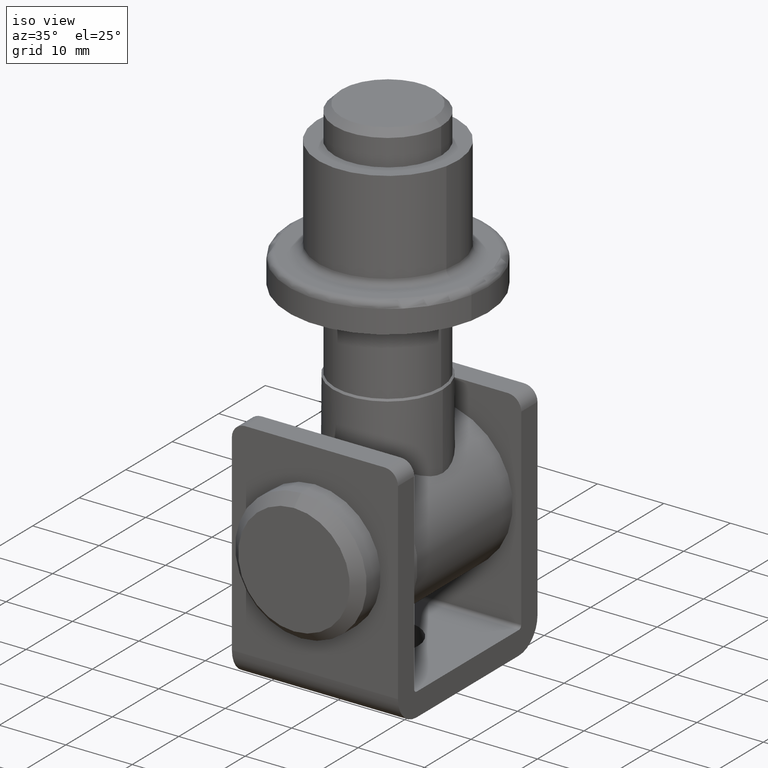
[diagram: clean part render]
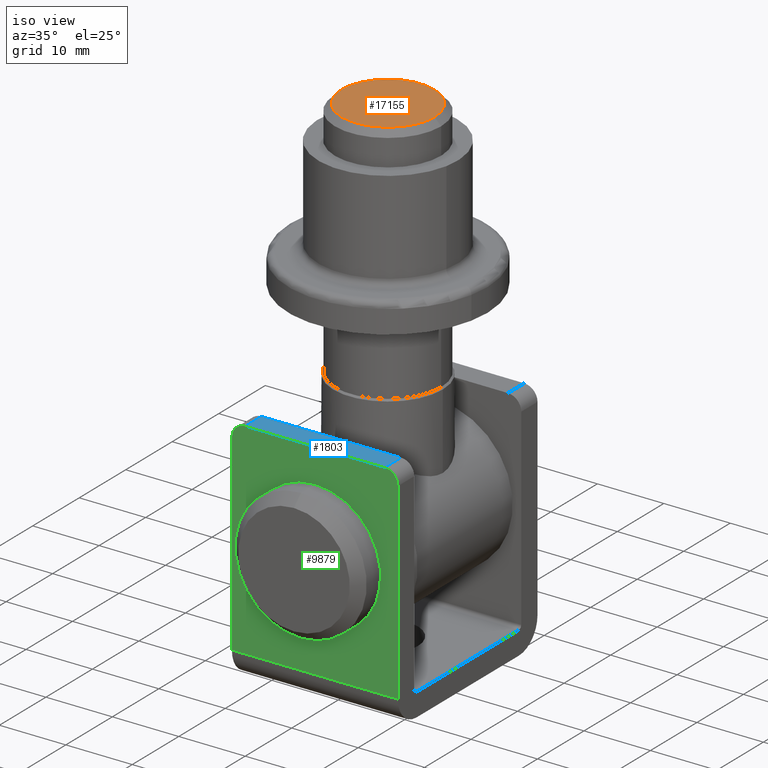
[diagram: same view with three faces highlighted in distinct colors, each labeled with its STEP entity id]
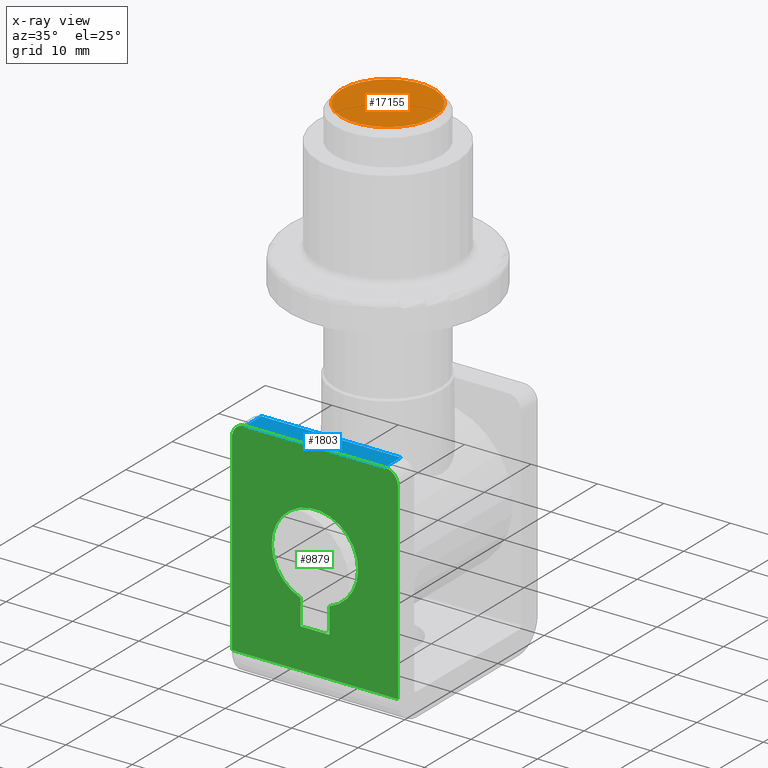
[diagram: x-ray of the same camera — body ghosted, the three highlighted faces saturated]
A machine part, iso view with three faces highlighted in distinct colors.
The next image is the same camera in x-ray (body ghosted, the three faces saturated) — at least one of them is partly hidden behind the body in this view.
Their STEP definitions:

[orange] entity #17155 — the highlighted planar face has unit normal (0, -0, -1).
#566 = CIRCLE ( 'NONE', #14099, 6.999999999999978684 ) ;
#2881 = ORIENTED_EDGE ( 'NONE', *, *, #12612, .T. ) ;
#3214 = CARTESIAN_POINT ( 'NONE',  ( 0.000000000000000000, 0.000000000000000000, -55.75000000000000000 ) ) ;
#3349 = FACE_OUTER_BOUND ( 'NONE', #10663, .T. ) ;
#3473 = DIRECTION ( 'NONE',  ( 1.000000000000000000, 0.000000000000000000, 0.000000000000000000 ) ) ;
#3843 = VERTEX_POINT ( 'NONE', #12645 ) ;
#4955 = CARTESIAN_POINT ( 'NONE',  ( 0.000000000000000000, 0.000000000000000000, -55.75000000000000000 ) ) ;
#5358 = ORIENTED_EDGE ( 'NONE', *, *, #16781, .T. ) ;
#7592 = PLANE ( 'NONE',  #9421 ) ;
#8819 = DIRECTION ( 'NONE',  ( 0.000000000000000000, 0.000000000000000000, 1.000000000000000000 ) ) ;
#9048 = DIRECTION ( 'NONE',  ( 1.000000000000000000, 0.000000000000000000, -0.000000000000000000 ) ) ;
#9421 = AXIS2_PLACEMENT_3D ( 'NONE', #10242, #8819, #9048 ) ;
#10242 = CARTESIAN_POINT ( 'NONE',  ( 0.000000000000000000, 0.000000000000000000, -55.75000000000000000 ) ) ;
#10663 = EDGE_LOOP ( 'NONE', ( #5358, #2881 ) ) ;
#12612 = EDGE_CURVE ( 'NONE', #3843, #17075, #17286, .T. ) ;
#12645 = CARTESIAN_POINT ( 'NONE',  ( -6.999999999999978684, 9.184850993605136112E-16, -55.75000000000000000 ) ) ;
#13008 = DIRECTION ( 'NONE',  ( -0.000000000000000000, -0.000000000000000000, -1.000000000000000000 ) ) ;
#13445 = AXIS2_PLACEMENT_3D ( 'NONE', #3214, #15105, #16450 ) ;
#14099 = AXIS2_PLACEMENT_3D ( 'NONE', #4955, #13008, #3473 ) ;
#15105 = DIRECTION ( 'NONE',  ( -0.000000000000000000, -0.000000000000000000, -1.000000000000000000 ) ) ;
#15641 = CARTESIAN_POINT ( 'NONE',  ( 6.999999999999978684, 0.000000000000000000, -55.75000000000000000 ) ) ;
#16450 = DIRECTION ( 'NONE',  ( 1.000000000000000000, 0.000000000000000000, 0.000000000000000000 ) ) ;
#16781 = EDGE_CURVE ( 'NONE', #17075, #3843, #566, .T. ) ;
#17075 = VERTEX_POINT ( 'NONE', #15641 ) ;
#17155 = ADVANCED_FACE ( 'NONE', ( #3349 ), #7592, .F. ) ;
#17286 = CIRCLE ( 'NONE', #13445, 6.999999999999978684 ) ;

[blue] entity #1803 — the highlighted planar face has unit normal (0, -0, 1).
#600 = LINE ( 'NONE', #3725, #7587 ) ;
#624 = EDGE_CURVE ( 'NONE', #2328, #8502, #13598, .T. ) ;
#1516 = CARTESIAN_POINT ( 'NONE',  ( 10.50000000000000000, 11.50000000000000178, -3.469446951953614189E-15 ) ) ;
#1803 = ADVANCED_FACE ( 'NONE', ( #16315 ), #12835, .T. ) ;
#1902 = EDGE_CURVE ( 'NONE', #6568, #8502, #12717, .T. ) ;
#2000 = CARTESIAN_POINT ( 'NONE',  ( 12.50000000000000000, 14.99999999999999822, 0.000000000000000000 ) ) ;
#2098 = ORIENTED_EDGE ( 'NONE', *, *, #15463, .T. ) ;
#2179 = AXIS2_PLACEMENT_3D ( 'NONE', #2000, #11368, #4786 ) ;
#2328 = VERTEX_POINT ( 'NONE', #3388 ) ;
#2374 = ORIENTED_EDGE ( 'NONE', *, *, #624, .F. ) ;
#2758 = VERTEX_POINT ( 'NONE', #9779 ) ;
#3256 = ORIENTED_EDGE ( 'NONE', *, *, #1902, .T. ) ;
#3388 = CARTESIAN_POINT ( 'NONE',  ( 10.50000000000000000, 14.99999999999999822, 0.000000000000000000 ) ) ;
#3604 = EDGE_LOOP ( 'NONE', ( #4250, #3256, #2374, #2098 ) ) ;
#3725 = CARTESIAN_POINT ( 'NONE',  ( 12.50000000000000000, 11.50000000000000178, -3.469446951953614189E-15 ) ) ;
#4247 = DIRECTION ( 'NONE',  ( -0.000000000000000000, 1.000000000000000000, 9.912705577010338368E-16 ) ) ;
#4250 = ORIENTED_EDGE ( 'NONE', *, *, #8228, .T. ) ;
#4786 = DIRECTION ( 'NONE',  ( 0.000000000000000000, 1.000000000000000000, 9.912705577010338368E-16 ) ) ;
#5271 = LINE ( 'NONE', #1516, #11154 ) ;
#6568 = VERTEX_POINT ( 'NONE', #9918 ) ;
#7587 = VECTOR ( 'NONE', #15420, 1000.000000000000000 ) ;
#8228 = EDGE_CURVE ( 'NONE', #2758, #6568, #600, .T. ) ;
#8502 = VERTEX_POINT ( 'NONE', #12592 ) ;
#9779 = CARTESIAN_POINT ( 'NONE',  ( 10.50000000000000000, 11.50000000000000178, -3.469446951953614189E-15 ) ) ;
#9918 = CARTESIAN_POINT ( 'NONE',  ( -10.49999999999999822, 11.50000000000000178, -3.469446951953614189E-15 ) ) ;
#10202 = VECTOR ( 'NONE', #4247, 1000.000000000000000 ) ;
#10602 = DIRECTION ( 'NONE',  ( -1.000000000000000000, -0.000000000000000000, -0.000000000000000000 ) ) ;
#10659 = CARTESIAN_POINT ( 'NONE',  ( 12.50000000000000000, 14.99999999999999822, 0.000000000000000000 ) ) ;
#11154 = VECTOR ( 'NONE', #12121, 1000.000000000000000 ) ;
#11368 = DIRECTION ( 'NONE',  ( 0.000000000000000000, 9.912705577010338368E-16, -1.000000000000000000 ) ) ;
#12121 = DIRECTION ( 'NONE',  ( 0.000000000000000000, -1.000000000000000000, -9.912705577010338368E-16 ) ) ;
#12592 = CARTESIAN_POINT ( 'NONE',  ( -10.49999999999999822, 14.99999999999999822, 0.000000000000000000 ) ) ;
#12717 = LINE ( 'NONE', #13765, #10202 ) ;
#12835 = PLANE ( 'NONE',  #2179 ) ;
#13366 = VECTOR ( 'NONE', #10602, 1000.000000000000000 ) ;
#13598 = LINE ( 'NONE', #10659, #13366 ) ;
#13765 = CARTESIAN_POINT ( 'NONE',  ( -10.49999999999999822, 14.99999999999999822, 0.000000000000000000 ) ) ;
#15420 = DIRECTION ( 'NONE',  ( -1.000000000000000000, -0.000000000000000000, -0.000000000000000000 ) ) ;
#15463 = EDGE_CURVE ( 'NONE', #2328, #2758, #5271, .T. ) ;
#16315 = FACE_OUTER_BOUND ( 'NONE', #3604, .T. ) ;

[green] entity #9879 — the highlighted planar face has unit normal (0, -1, 0).
#547 = AXIS2_PLACEMENT_3D ( 'NONE', #2496, #17269, #9038 ) ;
#624 = EDGE_CURVE ( 'NONE', #2328, #8502, #13598, .T. ) ;
#807 = VERTEX_POINT ( 'NONE', #3390 ) ;
#979 = EDGE_CURVE ( 'NONE', #8502, #807, #2421, .T. ) ;
#1344 = CARTESIAN_POINT ( 'NONE',  ( 12.50000000000000000, 15.00000000000000000, 31.00000000000000355 ) ) ;
#1461 = EDGE_LOOP ( 'NONE', ( #16688, #2962, #11446, #4775 ) ) ;
#1851 = CARTESIAN_POINT ( 'NONE',  ( -2.150000000000002576, 14.99999999999999822, 25.00000000000001066 ) ) ;
#1945 = CARTESIAN_POINT ( 'NONE',  ( 2.149999999999997247, 14.99999999999999822, 25.00000000000001066 ) ) ;
#2129 = DIRECTION ( 'NONE',  ( 0.000000000000000000, 0.000000000000000000, 1.000000000000000000 ) ) ;
#2328 = VERTEX_POINT ( 'NONE', #3388 ) ;
#2421 = CIRCLE ( 'NONE', #547, 2.000000000000000444 ) ;
#2496 = CARTESIAN_POINT ( 'NONE',  ( -10.50000000000000000, 14.99999999999999822, 1.999999999999999556 ) ) ;
#2675 = VERTEX_POINT ( 'NONE', #7126 ) ;
#2962 = ORIENTED_EDGE ( 'NONE', *, *, #4518, .F. ) ;
#3116 = VECTOR ( 'NONE', #9861, 1000.000000000000000 ) ;
#3150 = EDGE_CURVE ( 'NONE', #15427, #12789, #12172, .T. ) ;
#3206 = LINE ( 'NONE', #1945, #12681 ) ;
#3388 = CARTESIAN_POINT ( 'NONE',  ( 10.50000000000000000, 14.99999999999999822, 0.000000000000000000 ) ) ;
#3390 = CARTESIAN_POINT ( 'NONE',  ( -12.50000000000000000, 14.99999999999999822, 2.000000000000001776 ) ) ;
#3669 = DIRECTION ( 'NONE',  ( 0.000000000000000000, 1.000000000000000000, -4.956352788505163391E-17 ) ) ;
#3850 = ORIENTED_EDGE ( 'NONE', *, *, #6196, .T. ) ;
#4382 = DIRECTION ( 'NONE',  ( 0.000000000000000000, -4.956352788505162775E-17, -1.000000000000000000 ) ) ;
#4518 = EDGE_CURVE ( 'NONE', #2675, #14976, #3206, .T. ) ;
#4622 = CIRCLE ( 'NONE', #14445, 6.499999999999999112 ) ;
#4775 = ORIENTED_EDGE ( 'NONE', *, *, #15781, .F. ) ;
#4954 = VERTEX_POINT ( 'NONE', #15712 ) ;
#5641 = CARTESIAN_POINT ( 'NONE',  ( 12.50000000000000000, 15.00000000000000000, 35.00000000000000000 ) ) ;
#5686 = LINE ( 'NONE', #14895, #9481 ) ;
#5914 = LINE ( 'NONE', #11568, #10139 ) ;
#5943 = CARTESIAN_POINT ( 'NONE',  ( 2.149999999999997247, 14.99999999999999822, 25.00000000000001066 ) ) ;
#6196 = EDGE_CURVE ( 'NONE', #4954, #15427, #15563, .T. ) ;
#6320 = CARTESIAN_POINT ( 'NONE',  ( 12.50000000000000000, 15.00000000000000000, 35.00000000000000000 ) ) ;
#6802 = VERTEX_POINT ( 'NONE', #8843 ) ;
#7126 = CARTESIAN_POINT ( 'NONE',  ( -2.150000000000002576, 14.99999999999999822, 25.00000000000001066 ) ) ;
#8502 = VERTEX_POINT ( 'NONE', #12592 ) ;
#8843 = CARTESIAN_POINT ( 'NONE',  ( -2.150000000000002576, 14.99999999999999822, 21.13412585459412441 ) ) ;
#8923 = DIRECTION ( 'NONE',  ( 0.000000000000000000, 1.000000000000000000, -4.956352788505163391E-17 ) ) ;
#9038 = DIRECTION ( 'NONE',  ( 0.000000000000000000, 0.000000000000000000, 1.000000000000000000 ) ) ;
#9047 = FACE_BOUND ( 'NONE', #1461, .T. ) ;
#9481 = VECTOR ( 'NONE', #4382, 1000.000000000000000 ) ;
#9734 = EDGE_CURVE ( 'NONE', #4954, #807, #5686, .T. ) ;
#9861 = DIRECTION ( 'NONE',  ( 0.000000000000000000, -4.956352788505162775E-17, -1.000000000000000000 ) ) ;
#9879 = ADVANCED_FACE ( 'NONE', ( #9047, #12831 ), #13152, .T. ) ;
#9946 = CARTESIAN_POINT ( 'NONE',  ( 2.149999999999996358, 15.00000000000000000, 21.13412585459412441 ) ) ;
#10139 = VECTOR ( 'NONE', #15464, 1000.000000000000000 ) ;
#10251 = EDGE_CURVE ( 'NONE', #12789, #2328, #12196, .T. ) ;
#10602 = DIRECTION ( 'NONE',  ( -1.000000000000000000, -0.000000000000000000, -0.000000000000000000 ) ) ;
#10659 = CARTESIAN_POINT ( 'NONE',  ( 12.50000000000000000, 14.99999999999999822, 0.000000000000000000 ) ) ;
#11040 = AXIS2_PLACEMENT_3D ( 'NONE', #15784, #3669, #2129 ) ;
#11075 = ORIENTED_EDGE ( 'NONE', *, *, #9734, .F. ) ;
#11405 = DIRECTION ( 'NONE',  ( -0.000000000000000000, -0.000000000000000000, 1.000000000000000000 ) ) ;
#11446 = ORIENTED_EDGE ( 'NONE', *, *, #12175, .F. ) ;
#11568 = CARTESIAN_POINT ( 'NONE',  ( 2.149999999999997247, 14.99999999999999822, 25.00000000000001066 ) ) ;
#11590 = DIRECTION ( 'NONE',  ( 1.000000000000000000, -0.000000000000000000, -0.000000000000000000 ) ) ;
#11615 = DIRECTION ( 'NONE',  ( 0.000000000000000000, 4.956352788505163391E-17, 1.000000000000000000 ) ) ;
#11621 = DIRECTION ( 'NONE',  ( 0.000000000000000000, 0.000000000000000000, 1.000000000000000000 ) ) ;
#11640 = ORIENTED_EDGE ( 'NONE', *, *, #979, .T. ) ;
#11734 = DIRECTION ( 'NONE',  ( 0.000000000000000000, 1.000000000000000000, 0.000000000000000000 ) ) ;
#12039 = VECTOR ( 'NONE', #11405, 1000.000000000000000 ) ;
#12113 = VERTEX_POINT ( 'NONE', #9946 ) ;
#12172 = LINE ( 'NONE', #5641, #3116 ) ;
#12175 = EDGE_CURVE ( 'NONE', #6802, #2675, #17076, .T. ) ;
#12196 = CIRCLE ( 'NONE', #11040, 2.000000000000000444 ) ;
#12442 = ORIENTED_EDGE ( 'NONE', *, *, #3150, .T. ) ;
#12521 = CARTESIAN_POINT ( 'NONE',  ( 12.50000000000000000, 15.00000000000000000, 31.00000000000000355 ) ) ;
#12592 = CARTESIAN_POINT ( 'NONE',  ( -10.49999999999999822, 14.99999999999999822, 0.000000000000000000 ) ) ;
#12681 = VECTOR ( 'NONE', #11590, 1000.000000000000000 ) ;
#12789 = VERTEX_POINT ( 'NONE', #15913 ) ;
#12831 = FACE_OUTER_BOUND ( 'NONE', #14873, .T. ) ;
#12842 = VECTOR ( 'NONE', #15221, 1000.000000000000000 ) ;
#13152 = PLANE ( 'NONE',  #13398 ) ;
#13339 = ORIENTED_EDGE ( 'NONE', *, *, #10251, .T. ) ;
#13366 = VECTOR ( 'NONE', #10602, 1000.000000000000000 ) ;
#13398 = AXIS2_PLACEMENT_3D ( 'NONE', #6320, #8923, #11615 ) ;
#13598 = LINE ( 'NONE', #10659, #13366 ) ;
#13646 = EDGE_CURVE ( 'NONE', #14976, #12113, #5914, .T. ) ;
#14445 = AXIS2_PLACEMENT_3D ( 'NONE', #17150, #11734, #11621 ) ;
#14873 = EDGE_LOOP ( 'NONE', ( #11075, #3850, #12442, #13339, #16937, #11640 ) ) ;
#14895 = CARTESIAN_POINT ( 'NONE',  ( -12.50000000000000000, 15.00000000000000000, 35.00000000000000000 ) ) ;
#14976 = VERTEX_POINT ( 'NONE', #5943 ) ;
#15221 = DIRECTION ( 'NONE',  ( 1.000000000000000000, -0.000000000000000000, -0.000000000000000000 ) ) ;
#15427 = VERTEX_POINT ( 'NONE', #1344 ) ;
#15464 = DIRECTION ( 'NONE',  ( 0.000000000000000000, 0.000000000000000000, -1.000000000000000000 ) ) ;
#15563 = LINE ( 'NONE', #12521, #12842 ) ;
#15712 = CARTESIAN_POINT ( 'NONE',  ( -12.50000000000000000, 15.00000000000000000, 31.00000000000000355 ) ) ;
#15781 = EDGE_CURVE ( 'NONE', #12113, #6802, #4622, .T. ) ;
#15784 = CARTESIAN_POINT ( 'NONE',  ( 10.50000000000000000, 14.99999999999999822, 1.999999999999999556 ) ) ;
#15913 = CARTESIAN_POINT ( 'NONE',  ( 12.50000000000000000, 14.99999999999999822, 2.000000000000001776 ) ) ;
#16688 = ORIENTED_EDGE ( 'NONE', *, *, #13646, .F. ) ;
#16937 = ORIENTED_EDGE ( 'NONE', *, *, #624, .T. ) ;
#17076 = LINE ( 'NONE', #1851, #12039 ) ;
#17150 = CARTESIAN_POINT ( 'NONE',  ( -2.204364238465234639E-15, 14.99999999999999822, 15.00000000000001066 ) ) ;
#17269 = DIRECTION ( 'NONE',  ( 0.000000000000000000, 1.000000000000000000, -4.956352788505163391E-17 ) ) ;